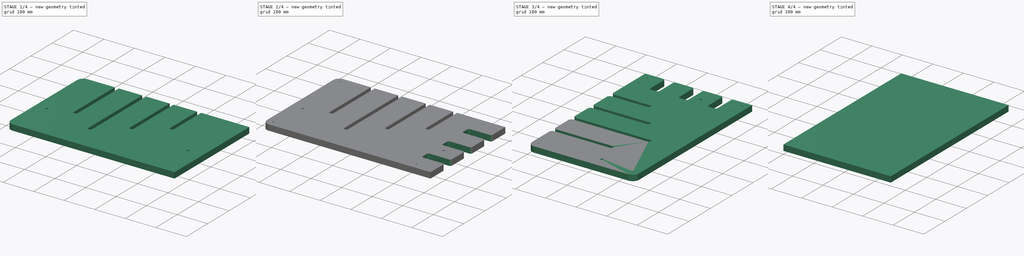
[diagram: build sequence overview — one tinted view per stage of 4, left to right]
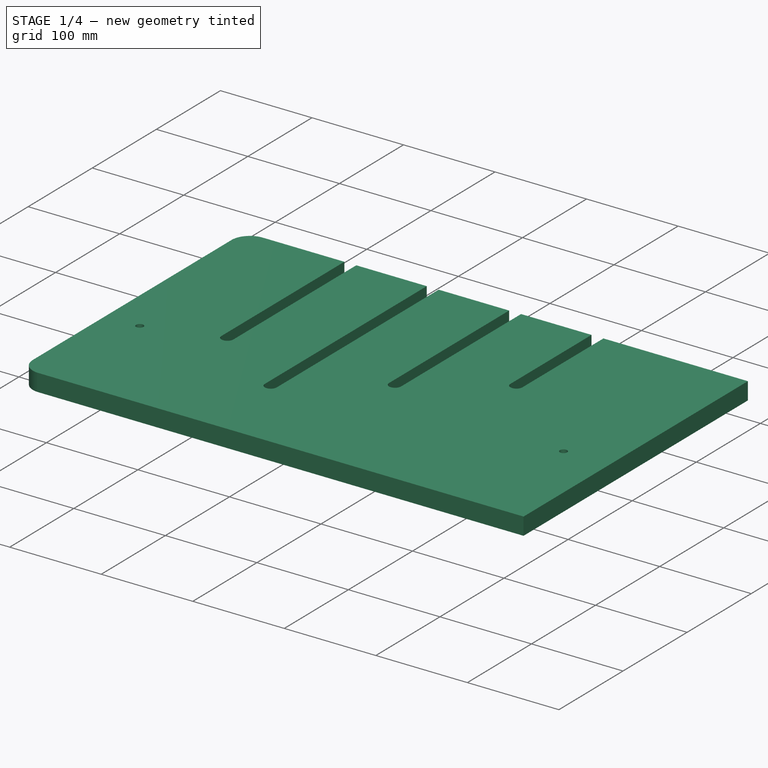
[diagram: stage 1 of 4 — iso view after this stage's code; geometry added in this stage tinted green]
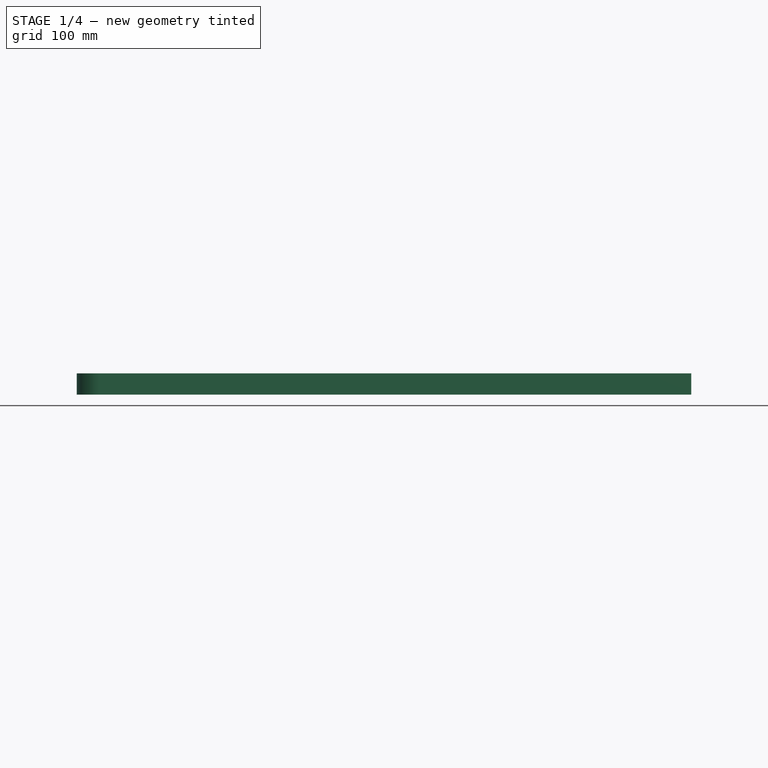
[diagram: stage 1 of 4 — front view after this stage's code; geometry added in this stage tinted green]
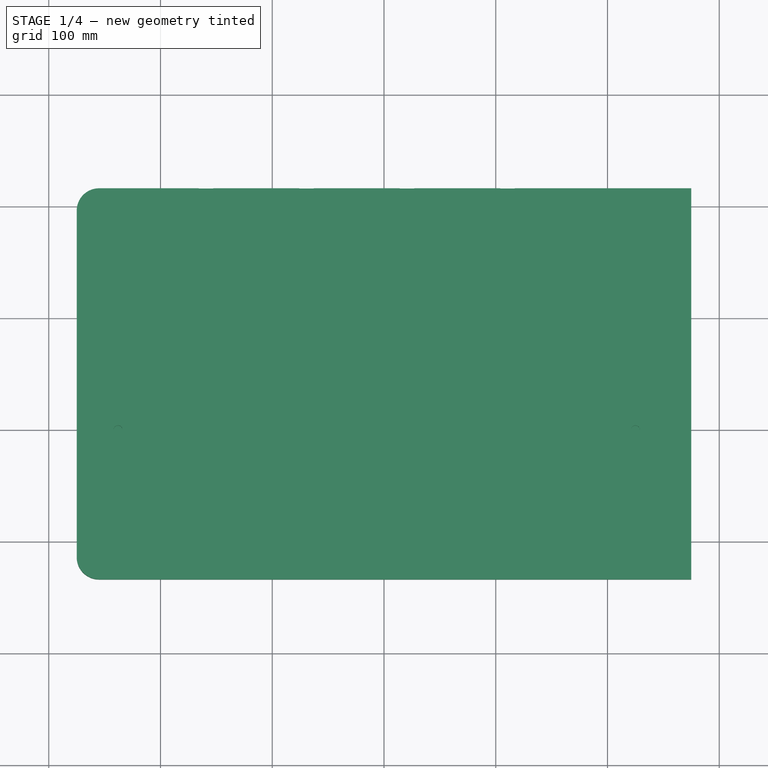
[diagram: stage 1 of 4 — top view after this stage's code; geometry added in this stage tinted green]
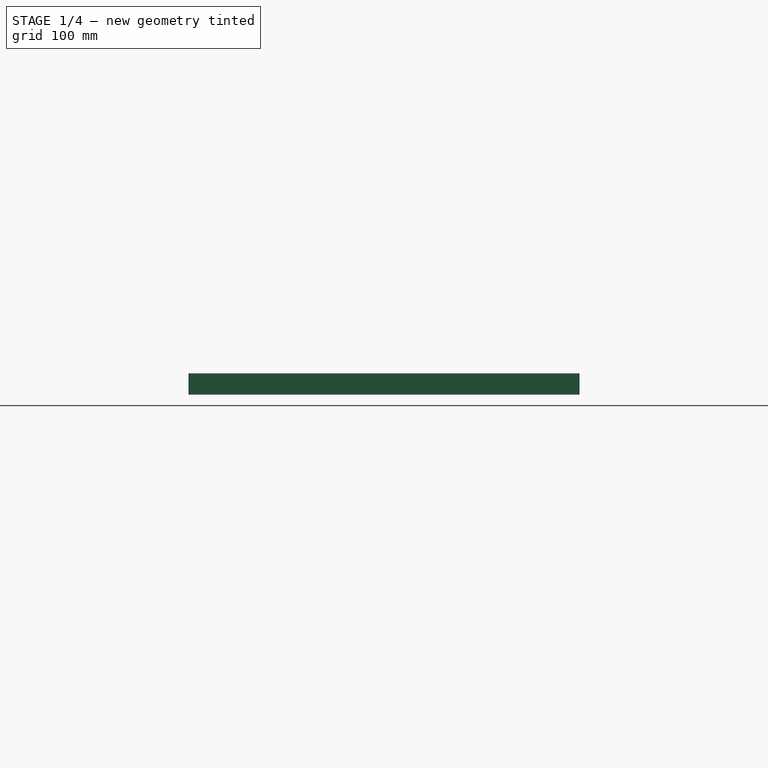
[diagram: stage 1 of 4 — right view after this stage's code; geometry added in this stage tinted green]
FCSTD DOCUMENT  (FreeCAD 0.19R23141 (Git))
Label: backing1-cam
License: All rights reserved
LicenseURL: http://en.wikipedia.org/wiki/All_rights_reserved
objects: Path::FeaturePython×9, Sketcher::SketchObject×6, PartDesign::Pocket×4, Part::FeaturePython×4, PartDesign::Fillet×2, App::FeaturePython×2, App::DocumentObjectGroup×2, Path::FeatureCompoundPython×2, PartDesign::ShapeBinder×1, PartDesign::Pad×1, PartDesign::Chamfer×1, PartDesign::Body×1
note: 29 computed .brp shape members not serialized (recipe doc carries the construction recipe); baked Part::Feature solids carry a one-line shape summary decoded from their .brp

FEATURE [Sketcher::SketchObject] Sketch  label="MasterSketch"
  MapMode = 5
  sketch-geometry (22):
    g0: Circle CenterX=-238 CenterY=0 CenterZ=0 NormalX=0 NormalY=0 NormalZ=1 AngleXU=0 Radius=16.25
    g1: Circle CenterX=225 CenterY=0 CenterZ=0 NormalX=0 NormalY=0 NormalZ=1 AngleXU=0 Radius=79.25
    g2: Circle CenterX=-159.323 CenterY=24.4049 CenterZ=0 NormalX=0 NormalY=0 NormalZ=1 AngleXU=0 Radius=66.125
    g3: Circle CenterX=-69.3232 CenterY=-36.4177 CenterZ=0 NormalX=0 NormalY=0 NormalZ=1 AngleXU=0 Radius=55.625
    g4: Circle CenterX=20.6768 CenterY=28.9777 CenterZ=0 NormalX=0 NormalY=0 NormalZ=1 AngleXU=0 Radius=81.875
    g5: Circle CenterX=110.677 CenterY=89.8003 CenterZ=0 NormalX=0 NormalY=0 NormalZ=1 AngleXU=0 Radius=66.125
    g6: LineSegment StartX=-275 StartY=216.2 StartZ=0 EndX=275 EndY=216.2 EndZ=0
    g7: LineSegment StartX=275 StartY=216.2 StartZ=0 EndX=275 EndY=-133.8 EndZ=0
    g8: LineSegment StartX=275 StartY=-133.8 StartZ=0 EndX=-275 EndY=-133.8 EndZ=0
    g9: LineSegment StartX=-275 StartY=-133.8 StartZ=0 EndX=-275 EndY=216.2 EndZ=0
    g10: Circle CenterX=-159.323 CenterY=24.4049 CenterZ=0 NormalX=0 NormalY=0 NormalZ=1 AngleXU=0 Radius=53
    g11: Circle CenterX=-69.3232 CenterY=-36.4177 CenterZ=0 NormalX=0 NormalY=0 NormalZ=1 AngleXU=0 Radius=29.375
    g12: Circle CenterX=20.6768 CenterY=28.9777 CenterZ=0 NormalX=0 NormalY=0 NormalZ=1 AngleXU=0 Radius=42.5
    g13: Circle CenterX=110.677 CenterY=89.8003 CenterZ=0 NormalX=0 NormalY=0 NormalZ=1 AngleXU=0 Radius=13.625
    g14: Circle CenterX=225 CenterY=0 CenterZ=0 NormalX=0 NormalY=0 NormalZ=1 AngleXU=0 Radius=63.5
    g15: LineSegment [constr] StartX=-159.323 StartY=24.4049 StartZ=0 EndX=-159.323 EndY=0 EndZ=0
    g16: LineSegment [constr] StartX=-69.3232 StartY=-36.4177 StartZ=0 EndX=-69.3232 EndY=0 EndZ=0
    g17: LineSegment [constr] StartX=20.6768 StartY=28.9777 StartZ=0 EndX=20.6768 EndY=0 EndZ=0
    g18: LineSegment [constr] StartX=110.677 StartY=89.8003 StartZ=0 EndX=110.677 EndY=0 EndZ=0
    g19: LineSegment [constr] StartX=-159.323 StartY=0 StartZ=0 EndX=-69.3232 EndY=0 EndZ=0
    g20: LineSegment [constr] StartX=-69.3232 StartY=0 StartZ=0 EndX=20.6768 EndY=0 EndZ=0
    g21: LineSegment [constr] StartX=20.6768 StartY=0 StartZ=0 EndX=110.677 EndY=0 EndZ=0
  constraints (61):
    c: PointOnObject(g0,g-1)
    c: PointOnObject(g1,g-1)
    c: Coincident(g6,g7)
    c: Coincident(g7,g8)
    c: Coincident(g8,g9)
    c: Coincident(g9,g6)
    c: Horizontal(g6)
    c: Vertical(g7)
    c: Vertical(g9)
    c: DistanceX(g6,g6) = 550
    c: DistanceY(g9,g9) = 350
    c: Radius(g2) = 66.125
    c: Radius(g0) = 16.25
    c: Tangent(g2,g0)
    c: Radius(g3) = 55.625
    c: Coincident(g10,g2)
    c: Coincident(g11,g3)
    c: Coincident(g12,g4)
    c: Coincident(g13,g5)
    c: Coincident(g14,g1)
    c: Radius(g10) = 53
    c: Radius(g11) = 29.375
    c: Tangent(g3,g10)
    c: Tangent(g4,g11)
    c: Tangent(g5,g12)
    c: Tangent(g1,g5)
    c: Radius(g4) = 81.875
    c: Radius(g12) = 42.5
    c: Radius(g5) = 66.125
    c: Radius(g13) = 13.625
    c: Coincident(g15,g2)
    c: PointOnObject(g15,g-1)
    c: Coincident(g16,g3)
    c: PointOnObject(g16,g-1)
    c: Vertical(g16)
    c: Coincident(g17,g4)
    c: PointOnObject(g17,g-1)
    c: Vertical(g17)
    c: Coincident(g18,g5)
    c: PointOnObject(g18,g-1)
    c: Vertical(g18)
    c: Vertical(g15)
    c: Coincident(g19,g15)
    c: Coincident(g19,g16)
    c: Coincident(g20,g16)
    c: Coincident(g20,g17)
    c: Coincident(g21,g17)
    c: Coincident(g21,g18)
    c: Radius(g1) = 79.25
    c: Radius(g14) = 63.5
    c: Distance(g19) = 90
    c: DistanceX(g6,g0) = 37
    c: Symmetric(g8,g7,g-2)
    c: Equal(g19,g20)
    c: Equal(g20,g21)
    c: Distance(g2,g3) = 108.625
    c: Distance(g3,g4) = 111.25
    c: Distance(g4,g5) = 108.625
    c: Distance(g5,g1) = 145.375
    c: DistanceY(g8,g-1) = 133.8
    c: DistanceX(g1,g6) = 50
FEATURE [PartDesign::ShapeBinder] ShapeBinder
  Support = -> [Sketch]
  TraceSupport = false
FEATURE [Sketcher::SketchObject] Sketch011
  ExternalGeometry = -> [ShapeBinder]
  MapMode = 5
  Support = -> [XY_Plane008]
  sketch-geometry (4):
    g0: LineSegment StartX=-275 StartY=216.2 StartZ=0 EndX=275 EndY=216.2 EndZ=0
    g1: LineSegment StartX=275 StartY=216.2 StartZ=0 EndX=275 EndY=-133.8 EndZ=0
    g2: LineSegment StartX=275 StartY=-133.8 StartZ=0 EndX=-275 EndY=-133.8 EndZ=0
    g3: LineSegment StartX=-275 StartY=-133.8 StartZ=0 EndX=-275 EndY=216.2 EndZ=0
  constraints (10):
    c: Coincident(g0,g1)
    c: Coincident(g1,g2)
    c: Coincident(g2,g3)
    c: Coincident(g3,g0)
    c: Horizontal(g0)
    c: Horizontal(g2)
    c: Vertical(g1)
    c: Vertical(g3)
    c: Coincident(g0,g-3)
    c: Coincident(g1,g-4)
FEATURE [PartDesign::Pad] Pad012
  Direction = (1,1,1)
  Length = 19
  Length2 = 100
  Profile = -> Sketch011
  Refine = true
  Reversed = true
  Type = 0
FEATURE [Sketcher::SketchObject] Sketch012
  ExternalGeometry = -> [ShapeBinder]
  MapMode = 5
  Support = -> [Pad012]
  sketch-geometry (18):
    g0: Circle CenterX=-238 CenterY=0 CenterZ=0 NormalX=0 NormalY=0 NormalZ=1 AngleXU=0 Radius=4
    g1: Circle CenterX=225 CenterY=0 CenterZ=0 NormalX=0 NormalY=0 NormalZ=1 AngleXU=0 Radius=4
    g2: ArcOfCircle CenterX=-159.323 CenterY=24.4049 CenterZ=0 NormalX=0 NormalY=0 NormalZ=1 AngleXU=0 Radius=6.5 StartAngle=3.14159 EndAngle=6.28319
    g3: ArcOfCircle CenterX=-159.323 CenterY=216.2 CenterZ=0 NormalX=0 NormalY=0 NormalZ=1 AngleXU=0 Radius=6.5 StartAngle=0 EndAngle=3.14159
    g4: LineSegment StartX=-152.823 StartY=24.4049 StartZ=0 EndX=-152.823 EndY=216.2 EndZ=0
    g5: LineSegment StartX=-165.823 StartY=24.4049 StartZ=0 EndX=-165.823 EndY=216.2 EndZ=0
    g6: ArcOfCircle CenterX=-69.3232 CenterY=-36.4177 CenterZ=0 NormalX=0 NormalY=0 NormalZ=1 AngleXU=0 Radius=6.5 StartAngle=3.14159 EndAngle=6.28319
    g7: ArcOfCircle CenterX=-69.3232 CenterY=216.2 CenterZ=0 NormalX=0 NormalY=0 NormalZ=1 AngleXU=0 Radius=6.5 StartAngle=0 EndAngle=3.14159
    g8: LineSegment StartX=-62.8232 StartY=-36.4177 StartZ=0 EndX=-62.8232 EndY=216.2 EndZ=0
    g9: LineSegment StartX=-75.8232 StartY=-36.4177 StartZ=0 EndX=-75.8232 EndY=216.2 EndZ=0
    g10: ArcOfCircle CenterX=20.6768 CenterY=28.9777 CenterZ=0 NormalX=0 NormalY=0 NormalZ=1 AngleXU=0 Radius=6.5 StartAngle=3.14159 EndAngle=6.28319
    g11: ArcOfCircle CenterX=20.6768 CenterY=216.2 CenterZ=0 NormalX=0 NormalY=0 NormalZ=1 AngleXU=0 Radius=6.5 StartAngle=0 EndAngle=3.14159
    g12: LineSegment StartX=27.1768 StartY=28.9777 StartZ=0 EndX=27.1768 EndY=216.2 EndZ=0
    g13: LineSegment StartX=14.1768 StartY=28.9777 StartZ=0 EndX=14.1768 EndY=216.2 EndZ=0
    g14: ArcOfCircle CenterX=110.677 CenterY=89.8003 CenterZ=0 NormalX=0 NormalY=0 NormalZ=1 AngleXU=0 Radius=6.5 StartAngle=3.14159 EndAngle=6.28319
    g15: ArcOfCircle CenterX=110.677 CenterY=216.2 CenterZ=0 NormalX=0 NormalY=0 NormalZ=1 AngleXU=0 Radius=6.5 StartAngle=1e-16 EndAngle=3.14159
    g16: LineSegment StartX=117.177 StartY=89.8003 StartZ=0 EndX=117.177 EndY=216.2 EndZ=0
    g17: LineSegment StartX=104.177 StartY=89.8003 StartZ=0 EndX=104.177 EndY=216.2 EndZ=0
  constraints (40):
    c: Coincident(g0,g-7)
    c: Coincident(g1,g-8)
    c: Tangent(g2,g5)
    c: Tangent(g2,g4)
    c: Tangent(g4,g3)
    c: Tangent(g5,g3)
    c: Vertical(g4)
    c: Equal(g2,g3)
    c: Coincident(g2,g-3)
    c: Tangent(g6,g9)
    c: Tangent(g6,g8)
    c: Tangent(g8,g7)
    c: Tangent(g9,g7)
    c: Vertical(g8)
    c: Equal(g6,g7)
    c: Coincident(g6,g-4)
    c: Tangent(g10,g13)
    c: Tangent(g10,g12)
    c: Tangent(g12,g11)
    c: Tangent(g13,g11)
    c: Vertical(g12)
    c: Equal(g10,g11)
    c: Coincident(g10,g-5)
    c: Tangent(g14,g17)
    c: Tangent(g14,g16)
    c: Tangent(g16,g15)
    c: Tangent(g17,g15)
    c: Vertical(g16)
    c: Equal(g14,g15)
    c: Coincident(g14,g-6)
    c: PointOnObject(g3,g-9)
    c: PointOnObject(g7,g-9)
    c: PointOnObject(g11,g-9)
    c: PointOnObject(g15,g-9)
    c: Equal(g15,g11)
    c: Equal(g11,g7)
    c: Equal(g7,g3)
    c: Radius(g3) = 6.5
    c: Radius(g0) = 4
    c: Radius(g1) = 4
FEATURE [PartDesign::Pocket] Pocket007
  BaseFeature = -> Pad012
  Length = 11
  Length2 = 100
  Profile = -> Sketch012
  Refine = true
  Type = 0
FEATURE [PartDesign::Fillet] Fillet
  Base = -> Pocket007 [Edge62,Edge20]
  BaseFeature = -> Pocket007
  Radius = 20
  Refine = true
  SupportTransform = false
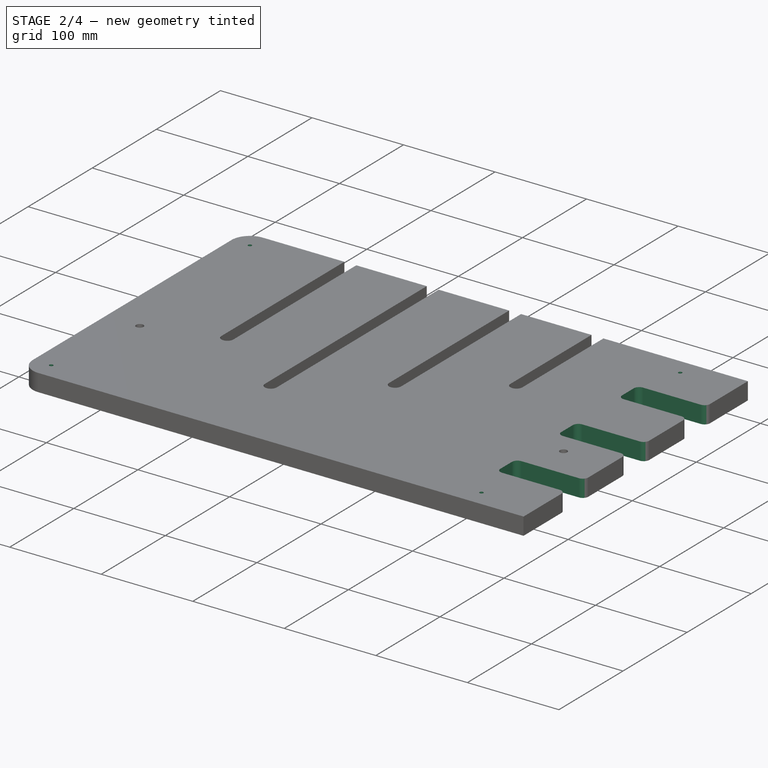
[diagram: stage 2 of 4 — iso view after this stage's code; geometry added in this stage tinted green]
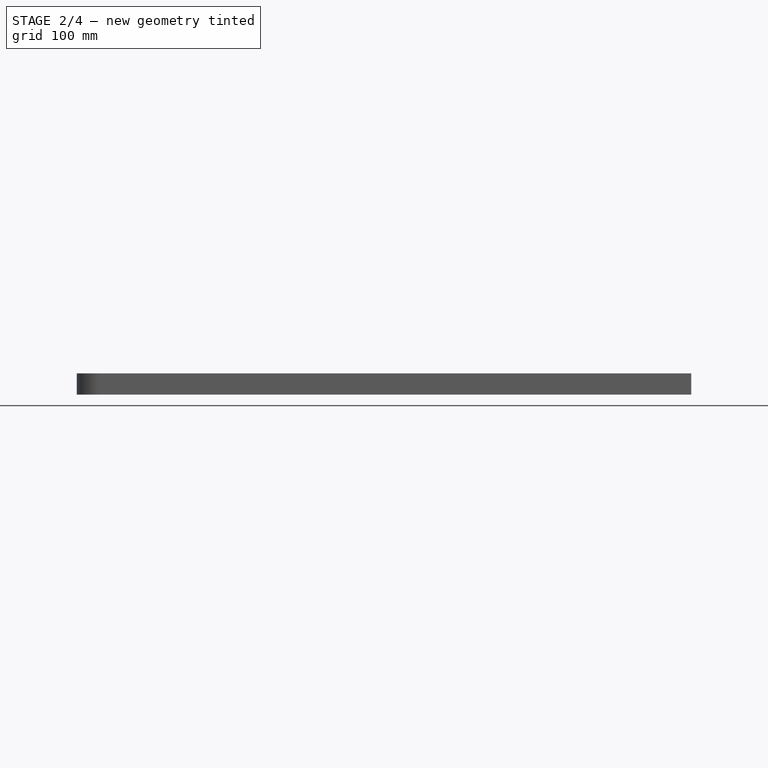
[diagram: stage 2 of 4 — front view after this stage's code; geometry added in this stage tinted green]
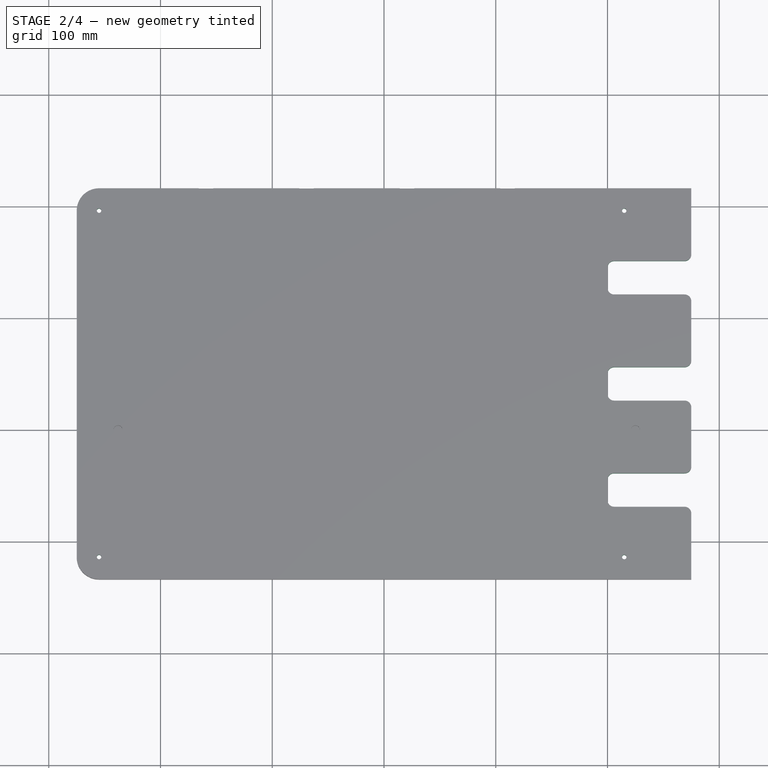
[diagram: stage 2 of 4 — top view after this stage's code; geometry added in this stage tinted green]
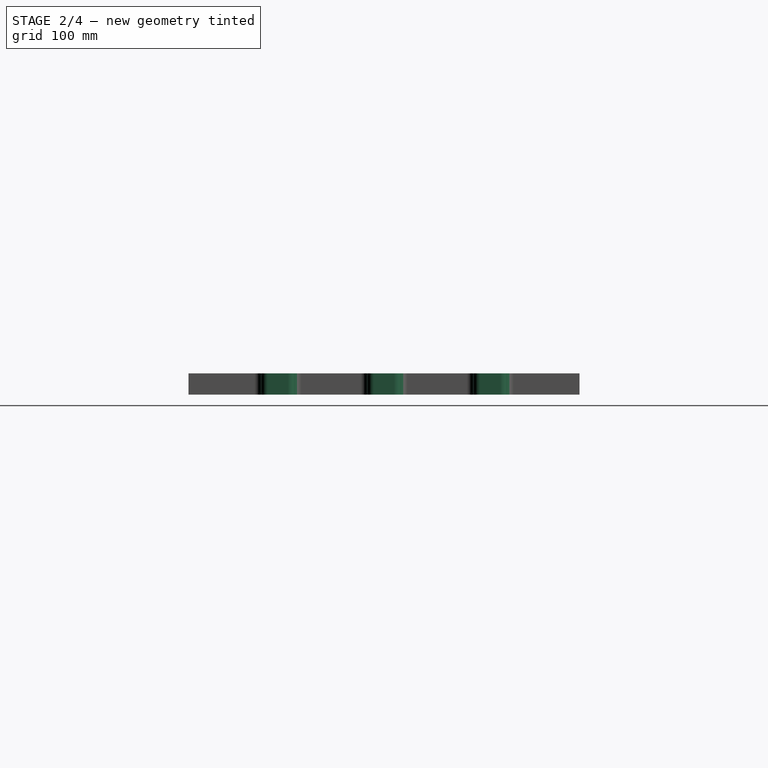
[diagram: stage 2 of 4 — right view after this stage's code; geometry added in this stage tinted green]
FEATURE [Sketcher::SketchObject] Sketch013
  ExternalGeometry = -> [Fillet,ShapeBinder]
  MapMode = 5
  Support = -> [Fillet]
  sketch-geometry (4):
    g0: Circle CenterX=-255 CenterY=196.2 CenterZ=0 NormalX=0 NormalY=0 NormalZ=1 AngleXU=0 Radius=2
    g1: Circle CenterX=-255 CenterY=-113.8 CenterZ=0 NormalX=0 NormalY=0 NormalZ=1 AngleXU=0 Radius=2
    g2: Circle CenterX=215 CenterY=-113.8 CenterZ=0 NormalX=0 NormalY=0 NormalZ=1 AngleXU=0 Radius=2
    g3: Circle CenterX=215 CenterY=196.2 CenterZ=0 NormalX=0 NormalY=0 NormalZ=1 AngleXU=0 Radius=2
  constraints (10):
    c: Coincident(g0,g-3)
    c: Coincident(g1,g-4)
    c: Equal(g2,g1)
    c: Equal(g1,g0)
    c: Equal(g0,g3)
    c: Radius(g0) = 2
    c: Horizontal(g2,g1)
    c: Horizontal(g3,g0)
    c: Vertical(g3,g2)
    c: DistanceX(g3,g-5) = 60
FEATURE [PartDesign::Pocket] Pocket008
  BaseFeature = -> Fillet
  Length = 5
  Length2 = 100
  Profile = -> Sketch013
  Refine = true
  Type = 1
FEATURE [Sketcher::SketchObject] Sketch014
  ExternalGeometry = -> [ShapeBinder]
  MapMode = 5
  Support = -> [Pocket008]
  sketch-geometry (16):
    g0: LineSegment StartX=275 StartY=151.2 StartZ=0 EndX=200 EndY=151.2 EndZ=0
    g1: LineSegment StartX=200 StartY=151.2 StartZ=0 EndX=200 EndY=121.2 EndZ=0
    g2: LineSegment StartX=200 StartY=121.2 StartZ=0 EndX=275 EndY=121.2 EndZ=0
    g3: LineSegment StartX=275 StartY=121.2 StartZ=0 EndX=275 EndY=151.2 EndZ=0
    g4: LineSegment StartX=275 StartY=-38.8 StartZ=0 EndX=200 EndY=-38.8 EndZ=0
    g5: LineSegment StartX=200 StartY=-38.8 StartZ=0 EndX=200 EndY=-68.8 EndZ=0
    g6: LineSegment StartX=200 StartY=-68.8 StartZ=0 EndX=275 EndY=-68.8 EndZ=0
    g7: LineSegment StartX=275 StartY=-68.8 StartZ=0 EndX=275 EndY=-38.8 EndZ=0
    g8: LineSegment StartX=275 StartY=56.2 StartZ=0 EndX=200 EndY=56.2 EndZ=0
    g9: LineSegment StartX=200 StartY=56.2 StartZ=0 EndX=200 EndY=26.2 EndZ=0
    g10: LineSegment StartX=200 StartY=26.2 StartZ=0 EndX=275 EndY=26.2 EndZ=0
    g11: LineSegment StartX=275 StartY=26.2 StartZ=0 EndX=275 EndY=56.2 EndZ=0
    g12: LineSegment [constr] StartX=200 StartY=121.2 StartZ=0 EndX=200 EndY=56.2 EndZ=0
    g13: LineSegment [constr] StartX=200 StartY=26.2 StartZ=0 EndX=200 EndY=-38.8 EndZ=0
    g14: LineSegment [constr] StartX=200 StartY=151.2 StartZ=0 EndX=200 EndY=216.2 EndZ=0
    g15: LineSegment [constr] StartX=200 StartY=-133.8 StartZ=0 EndX=200 EndY=-68.8 EndZ=0
  constraints (46):
    c: Coincident(g0,g1)
    c: Coincident(g1,g2)
    c: Coincident(g2,g3)
    c: Coincident(g3,g0)
    c: Horizontal(g0)
    c: Horizontal(g2)
    c: Vertical(g1)
    c: Vertical(g3)
    c: PointOnObject(g0,g-3)
    c: Coincident(g4,g5)
    c: Coincident(g5,g6)
    c: Coincident(g6,g7)
    c: Coincident(g7,g4)
    c: Horizontal(g4)
    c: Horizontal(g6)
    c: Vertical(g5)
    c: Vertical(g7)
    c: PointOnObject(g4,g-3)
    c: Coincident(g8,g9)
    c: Coincident(g9,g10)
    c: Coincident(g10,g11)
    c: Coincident(g11,g8)
    c: Horizontal(g8)
    c: Horizontal(g10)
    c: Vertical(g9)
    c: Vertical(g11)
    c: PointOnObject(g8,g-3)
    c: Equal(g1,g9)
    c: Equal(g9,g5)
    c: Equal(g0,g8)
    c: Equal(g8,g4)
    c: Coincident(g12,g1)
    c: Coincident(g12,g8)
    c: Coincident(g13,g9)
    c: Coincident(g13,g4)
    c: Equal(g13,g12)
    c: DistanceX(g0,g0) = 75
    c: DistanceY(g1,g1) = 30
    c: Coincident(g14,g0)
    c: PointOnObject(g14,g-4)
    c: Vertical(g14)
    c: Equal(g14,g12)
    c: PointOnObject(g15,g-5)
    c: Coincident(g15,g5)
    c: Vertical(g15)
    c: Equal(g15,g13)
FEATURE [PartDesign::Pocket] Pocket009
  BaseFeature = -> Pocket008
  Length = 5
  Length2 = 100
  Profile = -> Sketch014
  Refine = true
  Type = 1
FEATURE [PartDesign::Fillet] Fillet004
  Base = -> Pocket009 [Edge82,Edge112,Edge110,Edge109,Edge108,Edge106,Edge104,Edge105,Edge102,Edge103,Edge107,Edge111]
  BaseFeature = -> Pocket009
  Radius = 6
  Refine = true
  SupportTransform = false
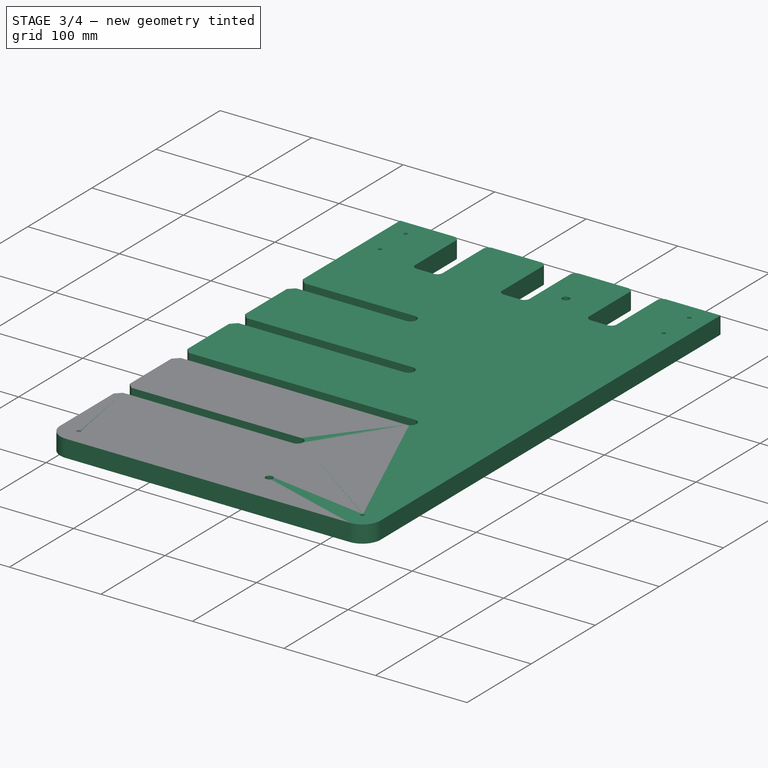
[diagram: stage 3 of 4 — iso view after this stage's code; geometry added in this stage tinted green]
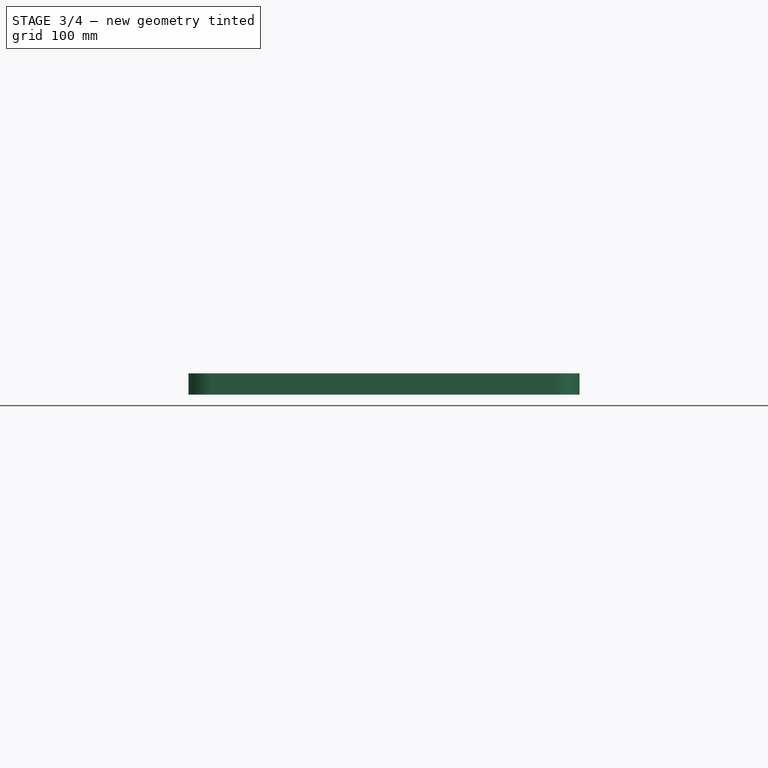
[diagram: stage 3 of 4 — front view after this stage's code; geometry added in this stage tinted green]
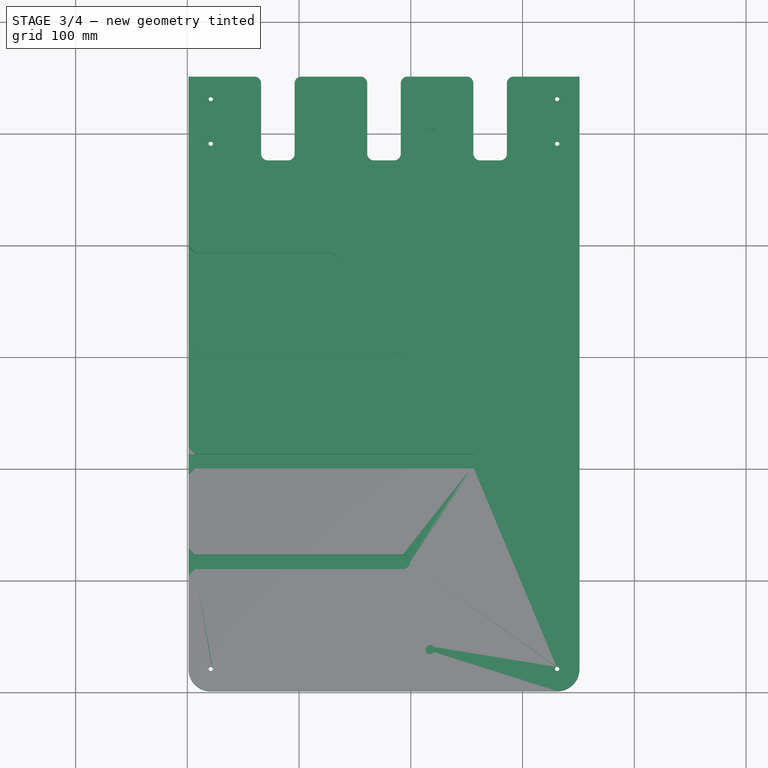
[diagram: stage 3 of 4 — top view after this stage's code; geometry added in this stage tinted green]
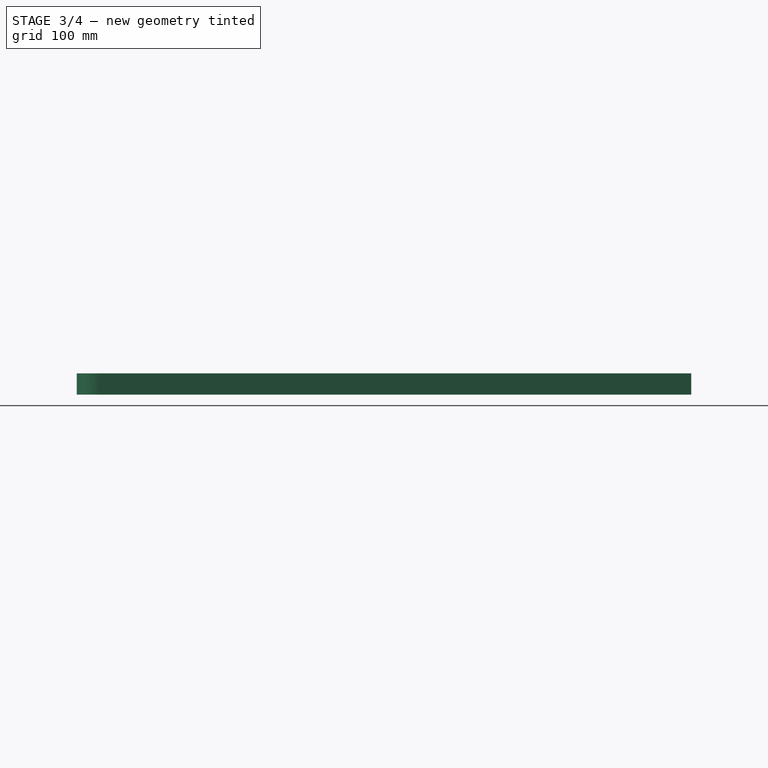
[diagram: stage 3 of 4 — right view after this stage's code; geometry added in this stage tinted green]
FEATURE [Sketcher::SketchObject] Sketch028
  ExternalGeometry = -> [Fillet004]
  MapMode = 5
  Placement = pos=(0,0,-19) rot=(1,0,0;3.14159rad)
  Support = -> [Fillet004]
  sketch-geometry (2):
    g0: Circle CenterX=255 CenterY=-196.2 CenterZ=0 NormalX=0 NormalY=0 NormalZ=1 AngleXU=0 Radius=2
    g1: Circle CenterX=255 CenterY=113.8 CenterZ=0 NormalX=0 NormalY=0 NormalZ=1 AngleXU=0 Radius=2
  constraints (6):
    c: Equal(g1,g-3)
    c: Equal(g-3,g0)
    c: Horizontal(g-4,g0)
    c: Horizontal(g-3,g1)
    c: Vertical(g1,g0)
    c: DistanceX(g-4,g0) = 40
FEATURE [PartDesign::Pocket] Pocket018
  BaseFeature = -> Fillet004
  Length = 5
  Length2 = 100
  Profile = -> Sketch028
  Refine = true
  Type = 1
FEATURE [PartDesign::Chamfer] Chamfer008
  Angle = 45
  Base = -> Pocket018 [Edge76,Edge80,Edge82,Edge86,Edge88,Edge87,Edge85,Edge81]
  BaseFeature = -> Pocket018
  ChamferType = 0
  FlipDirection = false
  Refine = true
  Size = 6
  Size2 = 1
  SupportTransform = false
FEATURE [Path::FeaturePython] Helix  # Path/CAM operation (typed FeaturePython)
  Active = true
  Base = -> [Clone]
  ClearanceHeight = 5
  CoolantMode = None
  CycleTime = 00:01:24
  Direction = 0
  EnableRotation = 0
  FinalDepth = -11
  OpFinalDepth = -11
  OpStartDepth = 0
  OpStockZMax = 0
  OpStockZMin = -19
  OpToolDiameter = 5
  SafeHeight = 3
  StartDepth = 0
  StartRadius = 0
  StartSide = 0
  StepDown = 5
  StepOver = 100
  ToolController = -> Default_Tool
  expr: ClearanceHeight = OpStockZMax + SetupSheet.ClearanceHeightOffset
  expr: SafeHeight = OpStockZMax + SetupSheet.SafeHeightOffset
  expr: StepDown = OpToolDiameter
  expr: FinalDepth = OpFinalDepth
  expr: StartDepth = OpStartDepth
FEATURE [Path::FeaturePython] Adaptive  # Path/CAM operation (typed FeaturePython)
  Active = true
  Base = -> [Clone]
  ClearanceHeight = 5
  CoolantMode = None
  CycleTime = 00:46:48
  FinalDepth = -11
  FinishDepth = 0
  ForceInsideOut = false
  HelixAngle = 5
  HelixDiameterLimit = 0
  KeepToolDownRatio = 3
  LiftDistance = 0
  OpFinalDepth = -11
  OpStartDepth = 0
  OpStockZMax = 0
  OpStockZMin = -19
  OpToolDiameter = 5
  OperationType = 0
  SafeHeight = 3
  Side = 1
  StartDepth = 0
  StepDown = 5
  StepOver = 45
  StockToLeave = 0
  StopProcessing = false
  Stopped = false
  Tolerance = 0.1
  ToolController = -> Default_Tool
  UseHelixArcs = false
  expr: ClearanceHeight = OpStockZMax + SetupSheet.ClearanceHeightOffset
  expr: SafeHeight = OpStockZMax + SetupSheet.SafeHeightOffset
  expr: StepDown = OpToolDiameter
  expr: FinalDepth = OpFinalDepth
  expr: StartDepth = OpStartDepth
FEATURE [Path::FeaturePython] Profile  # Path/CAM operation (typed FeaturePython)
  Active = true
  AreaParams:
    Tolerance = 1e-07
    FitArcs = True
    Simplify = False
    CleanDistance = 0.0
    Accuracy = 0.01
    Unit = 1.0
    MinArcPoints = 4
    MaxArcPoints = 100
    ClipperScale = 10000000.0
    Fill = 0
    Coplanar = 0
    Reorient = True
    Outline = False
    Explode = False
    OpenMode = 0
    Deflection = 0.01
    SubjectFill = 0
    ClipFill = 0
    Offset = 2.5
    ExtraPass = 0
    Stepover = 0.0
    LastStepover = 0.0
    JoinType = 0
    EndType = 0
    MiterLimit = 2.0
    RoundPrecision = 0.0
    PocketMode = 0
    ToolRadius = 1.0
    PocketExtraOffset = 0.0
    PocketStepover = 0.0
    PocketLastStepover = 0.0
    FromCenter = False
    Angle = 45.0
    AngleShift = 0.0
    Shift = 0.0
    Thicken = False
    SectionCount = -1
    Stepdown = 1.0
    SectionOffset = 0.0
    SectionTolerance = 1e-06
    SectionMode = 2
    Project = False
  AttemptInverseAngle = true
  ClearanceHeight = 5
  CoolantMode = None
  CycleTime = 00:09:50
  Direction = 0
  EnableRotation = 0
  ExpandProfile = 0
  ExpandProfileStepOver = 100
  FinalDepth = -19.5
  HandleMultipleFeatures = 1
  InverseAngle = false
  JoinType = 0
  LimitDepthToFace = true
  MiterLimit = 0.1
  OffsetExtra = 0
  OpFinalDepth = -19
  OpStartDepth = 0
  OpStockZMax = 0
  OpStockZMin = -19
  OpToolDiameter = 5
  PathParams = {'orientation': 1, 'feedrate': 16.666666666666668, 'feedrate_v': 1.6666666666666667, 'verbose': True, 'resume_height': 3.0, 'retraction': 5.0, 'return_end': True, 'preamble': False}
  ReverseDirection = false
  SafeHeight = 3
  Side = 0
  StartDepth = 0
  StartPoint = (0,0,0)
  StepDown = 5
  ToolController = -> Default_Tool
  UseComp = true
  UseStartPoint = false
  processCircles = false
  processHoles = false
  processPerimeter = true
  expr: ClearanceHeight = OpStockZMax + SetupSheet.ClearanceHeightOffset
  expr: SafeHeight = OpStockZMax + SetupSheet.SafeHeightOffset
  expr: StepDown = OpToolDiameter
  expr: FinalDepth = -19.5
  expr: StartDepth = OpStartDepth
FEATURE [Path::FeaturePython] DressupTag  # Path/CAM operation (typed FeaturePython)
  Angle = 45
  Base = -> Profile
  Disabled = [4]
  Height = 9.5
  Positions = (8) [(353.5,418.5,-19),(353.5,153.5,-19),(176.039,-1.49938,-19),(-1.5,156.55,-19),(-1.49938,285.961,-19),(-1.5,467.07,-19),(129.03,553.5,-19),(227.71,553.5,-19)]
  Radius = 0
  SegmentationFactor = 50
  Width = 53.01
FEATURE [Path::FeatureCompoundPython] Operations  # Path/CAM operation (typed FeaturePython)
  Group = -> [Helix,Adaptive,DressupTag]
  UsePlacements = false
FEATURE [Path::FeaturePython] Job  # Path/CAM operation (typed FeaturePython)
  CycleTime = 00:58:02
  Fixtures = G54
  GeometryTolerance = 0.01
  LastPostProcessDate = 2020-12-04 09:54:33.539649
  LastPostProcessOutput = <userpath>/cad/gears-puzzle-2/gcode/backing1.gcode
  Model = -> Model
  Operations = -> Operations
  OrderOutputBy = 0
  PostProcessor = 4
  SetupSheet = -> SetupSheet
  SplitOutput = false
  Stock = -> Stock
  ToolController = -> [Default_Tool]
FEATURE [Path::FeaturePython] Default_Tool001  label="TC: Default Tool001"  # Path/CAM operation (typed FeaturePython)
  HorizFeed = 16.6667
  HorizRapid = 0
  SpindleDir = 0
  SpindleSpeed = 24000
  ToolNumber = 1
  VertFeed = 1.66667
  VertRapid = 0
  expr: VertRapid = SetupSheet001.VertRapid
  expr: HorizRapid = SetupSheet001.HorizRapid
FEATURE [App::FeaturePython] SetupSheet001  # Path/CAM operation (typed FeaturePython)
  ClearanceHeightExpression = OpStockZMax+SetupSheet.ClearanceHeightOffset
  ClearanceHeightOffset = 5
  CoolantMode = 0
  CoolantModes = None | Flood | Mist
  FinalDepthExpression = OpFinalDepth
  HorizRapid = 0
  SafeHeightExpression = OpStockZMax+SetupSheet.SafeHeightOffset
  SafeHeightOffset = 3
  StartDepthExpression = OpStartDepth
  StepDownExpression = OpToolDiameter
  VertRapid = 0
FEATURE [Part::FeaturePython] Clone001  label="Model-Backing002"  # Draft clone (typed FeaturePython)
  AttacherType = Attacher::AttachEngine3D
  Fuse = false
  Objects = -> [Body008]
  PathResource = Model
  Placement = pos=(217.2,276,0) rot=(0,0,1;1.5708rad)
  Scale = (1,1,1)
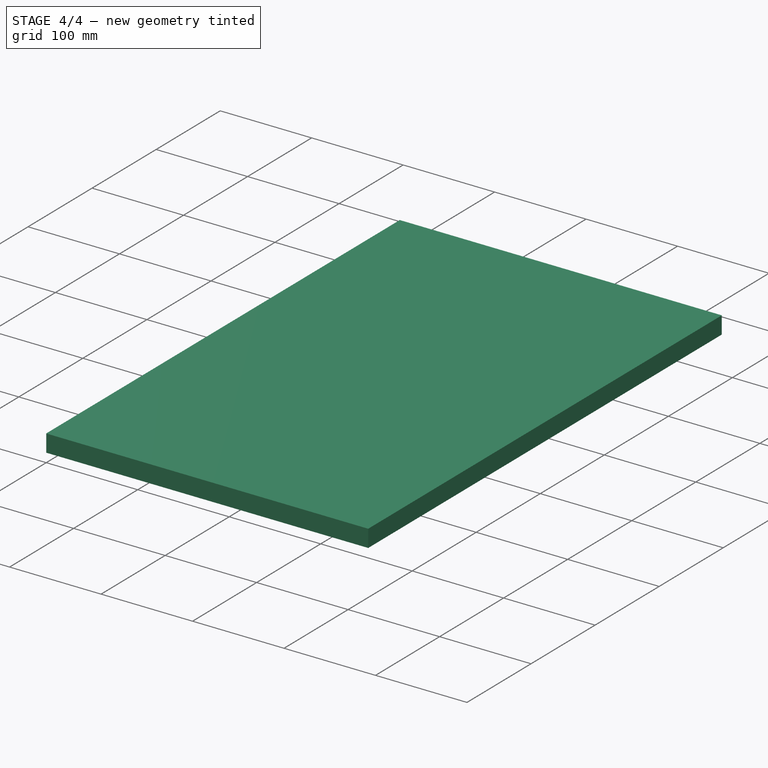
[diagram: stage 4 of 4 — iso view after this stage's code; geometry added in this stage tinted green]
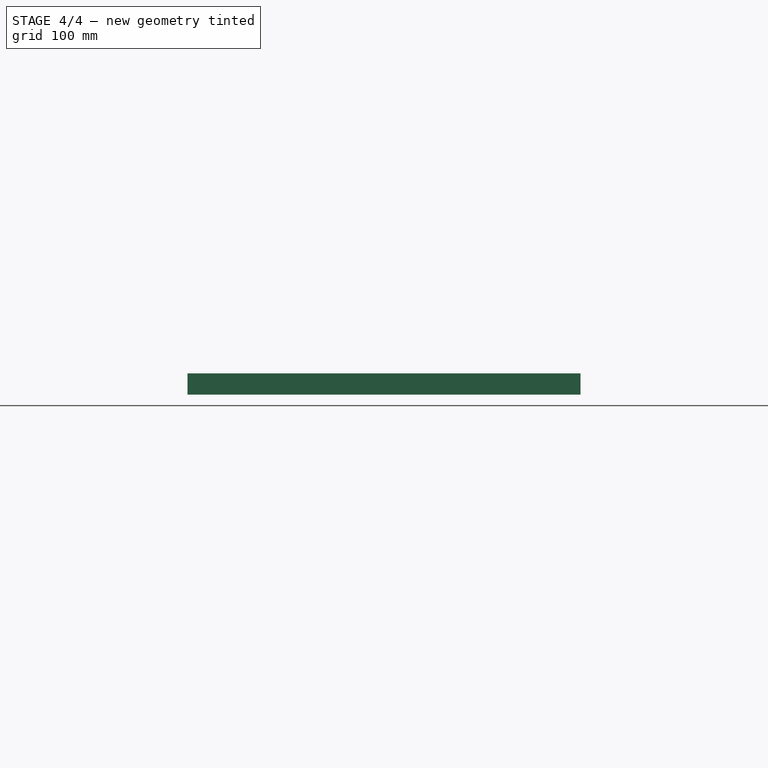
[diagram: stage 4 of 4 — front view after this stage's code; geometry added in this stage tinted green]
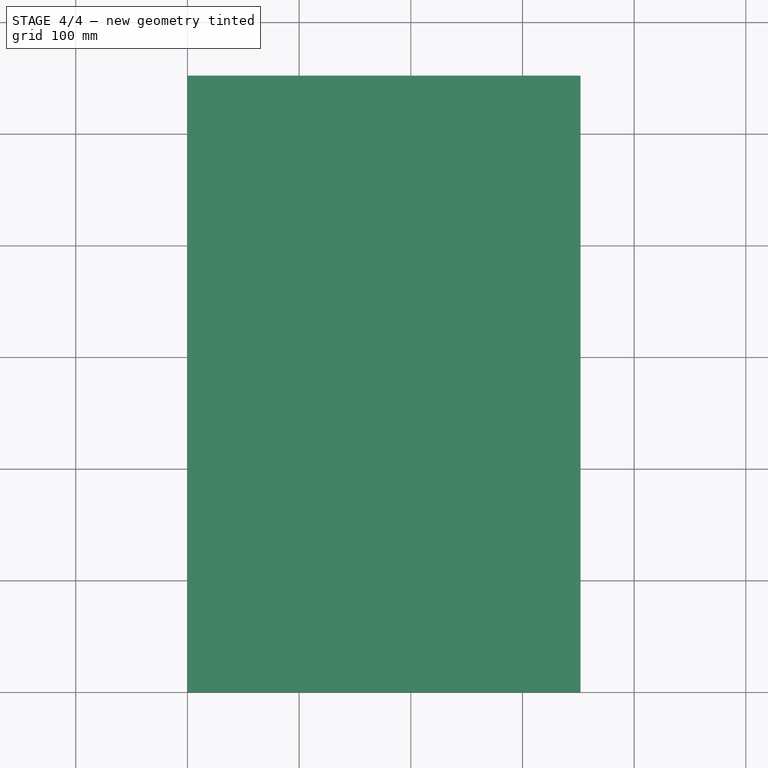
[diagram: stage 4 of 4 — top view after this stage's code; geometry added in this stage tinted green]
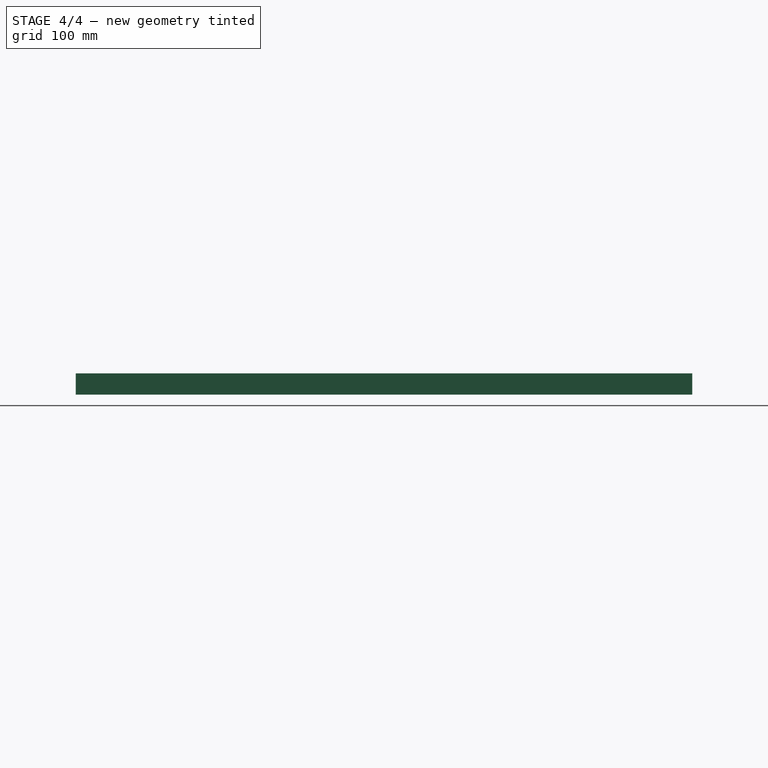
[diagram: stage 4 of 4 — right view after this stage's code; geometry added in this stage tinted green]
FEATURE [PartDesign::Body] Body008  label="Backing1"
  Group = -> [ShapeBinder,Sketch011,Pad012,Sketch012,Pocket007,Fillet,Sketch013,Pocket008,Sketch014,Pocket009,Fillet004,Sketch028,Pocket018,Chamfer008]
  Origin = -> Origin008
  Placement = pos=(0,0,-9) rot=(0,0,1;0rad)
  Tip = -> Chamfer008
FEATURE [App::FeaturePython] SetupSheet  # Path/CAM operation (typed FeaturePython)
  ClearanceHeightExpression = OpStockZMax+SetupSheet.ClearanceHeightOffset
  ClearanceHeightOffset = 5
  CoolantMode = 0
  CoolantModes = None | Flood | Mist
  FinalDepthExpression = OpFinalDepth
  HorizRapid = 0
  SafeHeightExpression = OpStockZMax+SetupSheet.SafeHeightOffset
  SafeHeightOffset = 3
  StartDepthExpression = OpStartDepth
  StepDownExpression = OpToolDiameter
  VertRapid = 0
FEATURE [Part::FeaturePython] Clone  label="Model-Backing1"  # Draft clone (typed FeaturePython)
  AttacherType = Attacher::AttachEngine3D
  Fuse = false
  Objects = -> [Body008]
  PathResource = Model
  Placement = pos=(217.2,276,0) rot=(0,0,1;1.5708rad)
  Scale = (1,1,1)
FEATURE [App::DocumentObjectGroup] Model
  Group = -> [Clone]
FEATURE [Path::FeaturePython] Default_Tool  label="TC: Default Tool"  # Path/CAM operation (typed FeaturePython)
  HorizFeed = 16.6667
  HorizRapid = 0
  SpindleDir = 0
  SpindleSpeed = 24000
  ToolNumber = 1
  VertFeed = 1.66667
  VertRapid = 0
  expr: HorizRapid = SetupSheet.HorizRapid
  expr: VertRapid = SetupSheet.VertRapid
FEATURE [Part::FeaturePython] Stock  # WARN: FeaturePython — macro-defined, semantics opaque (R4)
  Base = -> Model
  ExtXneg = 1
  ExtXpos = 1
  ExtYneg = 1
  ExtYpos = 1
  ExtZneg = 0
  ExtZpos = 0
  Placement = pos=(1,1,-19) rot=(0,0,1;0rad)
  StockType = FromBase
FEATURE [App::DocumentObjectGroup] Model001
  Group = -> [Clone001]
FEATURE [Part::FeaturePython] Stock001  # WARN: FeaturePython — macro-defined, semantics opaque (R4)
  Base = -> Model001
  ExtXneg = 1
  ExtXpos = 1
  ExtYneg = 1
  ExtYpos = 1
  ExtZneg = 0
  ExtZpos = 0
  Placement = pos=(1,1,-19) rot=(0,0,1;0rad)
  StockType = FromBase
FEATURE [Path::FeaturePython] Helix001  # Path/CAM operation (typed FeaturePython)
  Active = true
  Base = -> [Clone001]
  ClearanceHeight = 5
  CoolantMode = None
  CycleTime = 00:02:05
  Direction = 0
  EnableRotation = 0
  FinalDepth = -1
  OpFinalDepth = -11
  OpStartDepth = 0
  OpStockZMax = 0
  OpStockZMin = -19
  OpToolDiameter = 3.9
  SafeHeight = 3
  StartDepth = 0
  StartRadius = 0
  StartSide = 0
  StepDown = 3.9
  StepOver = 100
  ToolController = -> Default_Tool001
  expr: ClearanceHeight = OpStockZMax + SetupSheet.ClearanceHeightOffset
  expr: SafeHeight = OpStockZMax + SetupSheet.SafeHeightOffset
  expr: StepDown = OpToolDiameter
  expr: FinalDepth = -1
  expr: StartDepth = OpStartDepth
FEATURE [Path::FeatureCompoundPython] Operations001  # Path/CAM operation (typed FeaturePython)
  Group = -> [Helix001]
  UsePlacements = false
FEATURE [Path::FeaturePython] Job001  # Path/CAM operation (typed FeaturePython)
  CycleTime = 00:02:05
  Fixtures = G54
  GeometryTolerance = 0.01
  LastPostProcessDate = 2020-12-04 10:34:46.028287
  LastPostProcessOutput = <userpath>/cad/gears-puzzle-2/gcode/backing1-spot-drill.gcode
  Model = -> Model001
  Operations = -> Operations001
  OrderOutputBy = 0
  PostProcessor = 4
  SetupSheet = -> SetupSheet001
  SplitOutput = false
  Stock = -> Stock001
  ToolController = -> [Default_Tool001]
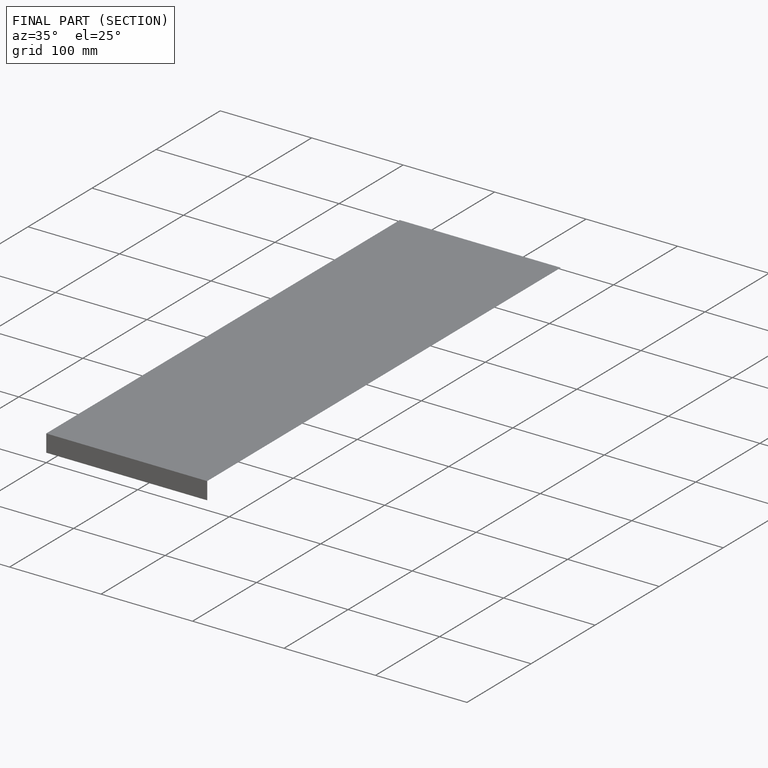
[diagram: finished part — half-section view (interior)]
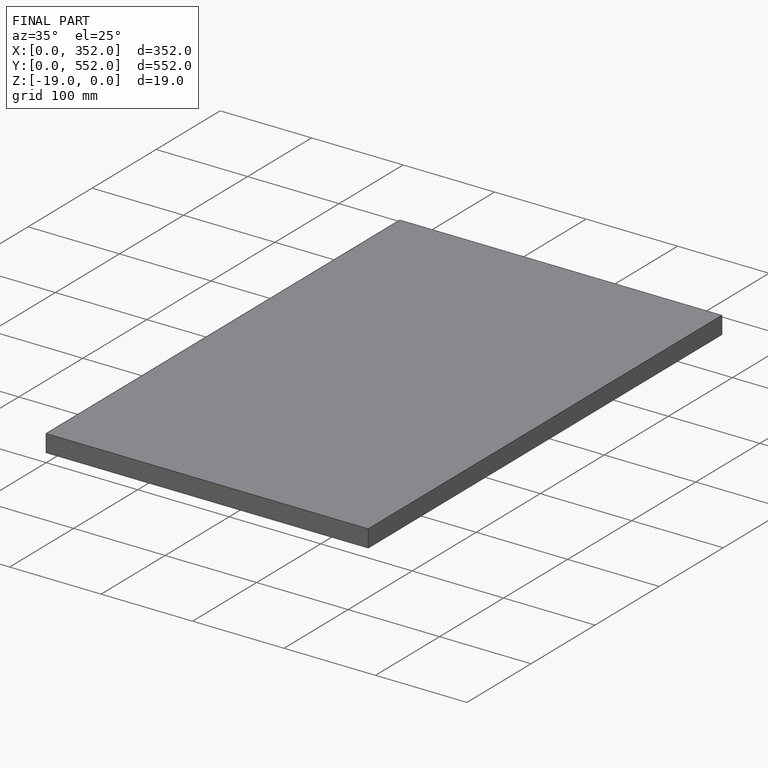
[diagram: finished part — iso view with bounding-box wireframe]
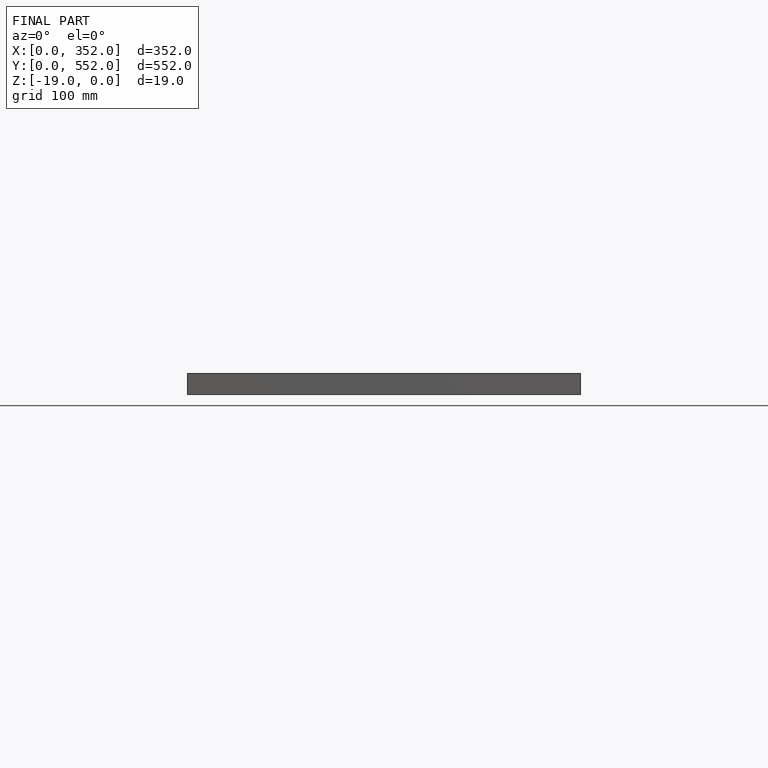
[diagram: finished part — front view with bounding-box wireframe]
